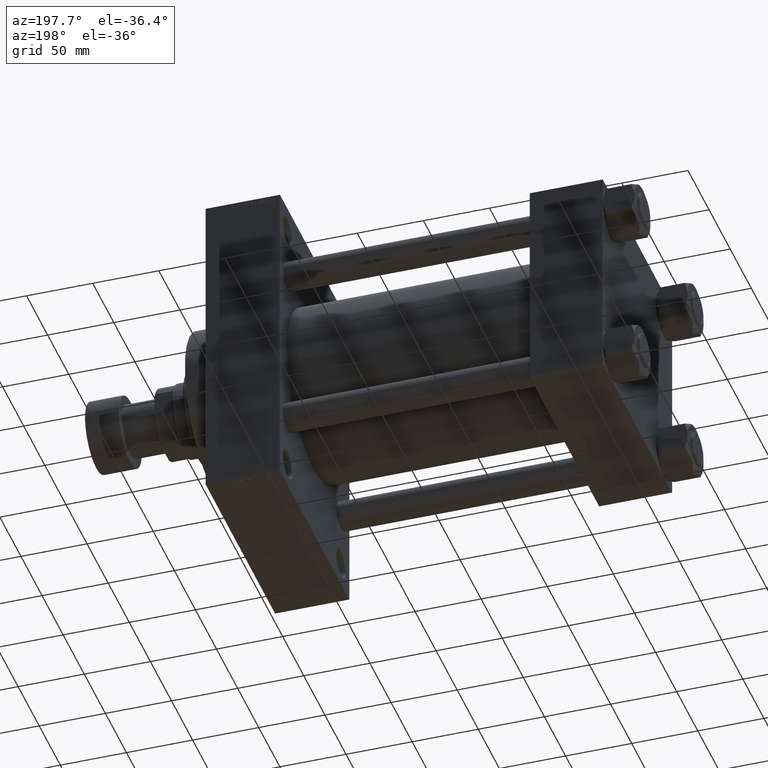
[diagram: clean part render]
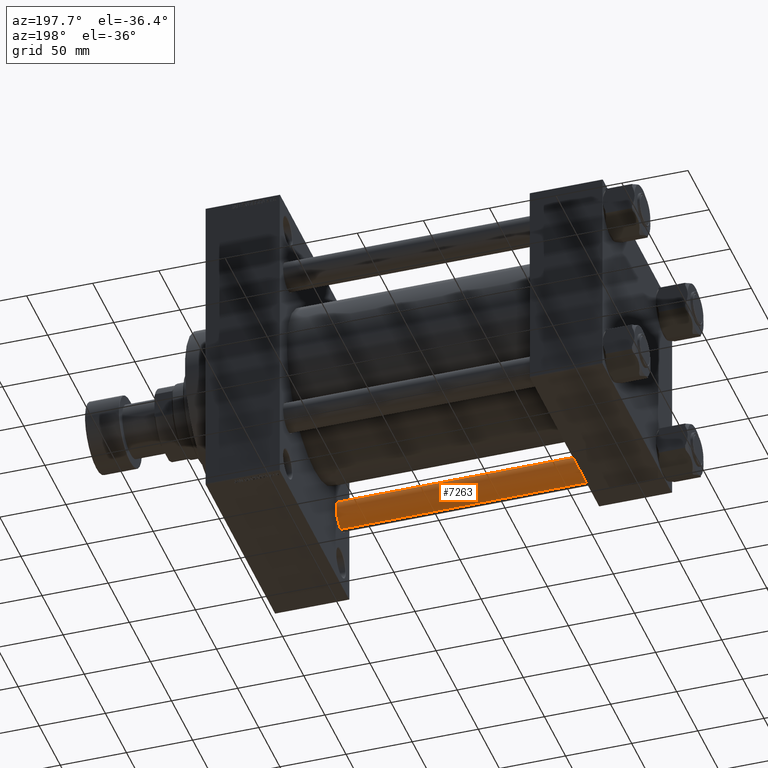
[diagram: same view with one face highlighted and labeled with its STEP entity id]
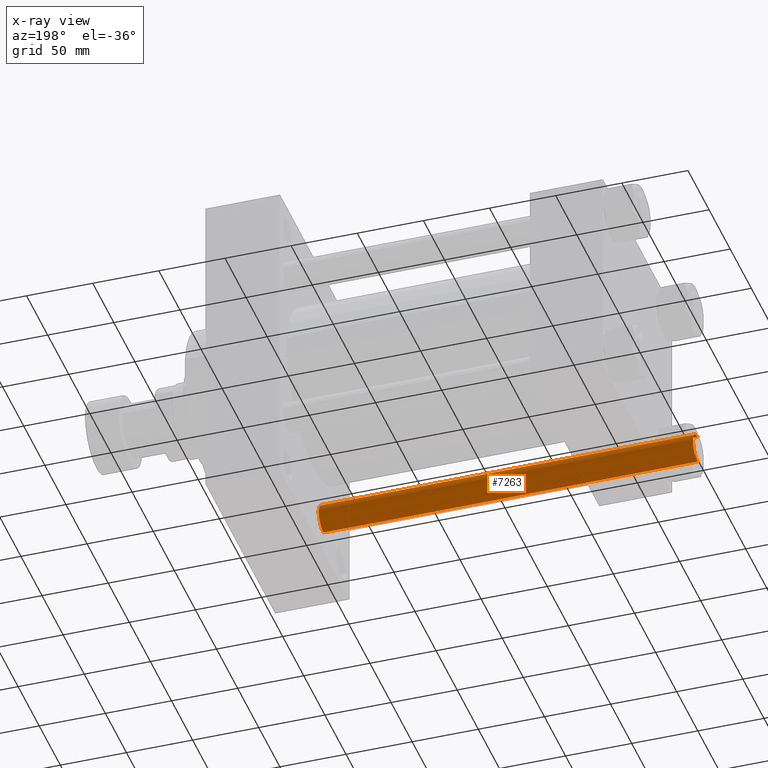
[diagram: x-ray of the same camera — body ghosted, the highlighted face saturated]
A machine part, auxiliary view. The second image highlights one B-rep face of the part: STEP entity #7263.
The next image is the same camera in x-ray: the body ghosted, the highlighted face saturated — about 0% of this face is hidden behind the body in this view.
In plain terms, the highlighted cylindrical surface (edge-blend (fillet) strip) has radius 11 mm, axis along (1, 0, 0).
Its self-contained STEP definition (entity closure, byte-faithful):
#1631 = ORIENTED_EDGE ( 'NONE', *, *, #29356, .T. ) ;
#2133 = AXIS2_PLACEMENT_3D ( 'NONE', #9176, #24020, #46909 ) ;
#3345 = DIRECTION ( 'NONE',  ( 1.000000000000000000, 0.000000000000000000, 0.000000000000000000 ) ) ;
#4545 = VERTEX_POINT ( 'NONE', #5299 ) ;
#5299 = CARTESIAN_POINT ( 'NONE',  ( -11.00000000000000000, 0.000000000000000000, 283.5000000000001137 ) ) ;
#7263 = ADVANCED_FACE ( 'NONE', ( #32030 ), #9887, .T. ) ;
#7474 = DIRECTION ( 'NONE',  ( -0.000000000000000000, -0.000000000000000000, 1.000000000000000000 ) ) ;
#8455 = VECTOR ( 'NONE', #22610, 1000.000000000000000 ) ;
#8836 = AXIS2_PLACEMENT_3D ( 'NONE', #18875, #7474, #33744 ) ;
#9176 = CARTESIAN_POINT ( 'NONE',  ( 0.000000000000000000, 0.000000000000000000, 284.0000000000000000 ) ) ;
#9887 = CYLINDRICAL_SURFACE ( 'NONE', #2133, 11.00000000000000000 ) ;
#10512 = VERTEX_POINT ( 'NONE', #24304 ) ;
#11657 = ORIENTED_EDGE ( 'NONE', *, *, #43858, .T. ) ;
#15003 = CARTESIAN_POINT ( 'NONE',  ( 11.00000000000000000, 1.347111479062088405E-15, 283.5000000000001137 ) ) ;
#16787 = CARTESIAN_POINT ( 'NONE',  ( -11.00000000000000000, 0.000000000000000000, 284.0000000000000000 ) ) ;
#18688 = EDGE_CURVE ( 'NONE', #23224, #10512, #45273, .T. ) ;
#18875 = CARTESIAN_POINT ( 'NONE',  ( 0.000000000000000000, 0.000000000000000000, 0.5000000000000559552 ) ) ;
#22610 = DIRECTION ( 'NONE',  ( -0.000000000000000000, -0.000000000000000000, -1.000000000000000000 ) ) ;
#23207 = EDGE_CURVE ( 'NONE', #26106, #10512, #26721, .T. ) ;
#23224 = VERTEX_POINT ( 'NONE', #15003 ) ;
#24020 = DIRECTION ( 'NONE',  ( -0.000000000000000000, -0.000000000000000000, -1.000000000000000000 ) ) ;
#24304 = CARTESIAN_POINT ( 'NONE',  ( 11.00000000000000000, 1.347111479062088405E-15, 0.5000000000000559552 ) ) ;
#26106 = VERTEX_POINT ( 'NONE', #29625 ) ;
#26721 = CIRCLE ( 'NONE', #8836, 11.00000000000000000 ) ;
#29356 = EDGE_CURVE ( 'NONE', #4545, #26106, #35288, .T. ) ;
#29433 = ORIENTED_EDGE ( 'NONE', *, *, #23207, .T. ) ;
#29625 = CARTESIAN_POINT ( 'NONE',  ( -11.00000000000000000, 0.000000000000000000, 0.5000000000000559552 ) ) ;
#32030 = FACE_OUTER_BOUND ( 'NONE', #40290, .T. ) ;
#33744 = DIRECTION ( 'NONE',  ( 1.000000000000000000, 0.000000000000000000, 0.000000000000000000 ) ) ;
#33848 = VECTOR ( 'NONE', #43568, 1000.000000000000000 ) ;
#35288 = LINE ( 'NONE', #16787, #33848 ) ;
#37234 = CARTESIAN_POINT ( 'NONE',  ( 11.00000000000000000, 1.347111479062088405E-15, 284.0000000000000000 ) ) ;
#37593 = CIRCLE ( 'NONE', #43824, 11.00000000000000000 ) ;
#38812 = ORIENTED_EDGE ( 'NONE', *, *, #18688, .F. ) ;
#40290 = EDGE_LOOP ( 'NONE', ( #38812, #11657, #1631, #29433 ) ) ;
#40851 = DIRECTION ( 'NONE',  ( 0.000000000000000000, 0.000000000000000000, -1.000000000000000000 ) ) ;
#43568 = DIRECTION ( 'NONE',  ( -0.000000000000000000, -0.000000000000000000, -1.000000000000000000 ) ) ;
#43824 = AXIS2_PLACEMENT_3D ( 'NONE', #44023, #40851, #3345 ) ;
#43858 = EDGE_CURVE ( 'NONE', #23224, #4545, #37593, .T. ) ;
#44023 = CARTESIAN_POINT ( 'NONE',  ( 0.000000000000000000, 0.000000000000000000, 283.5000000000001137 ) ) ;
#45273 = LINE ( 'NONE', #37234, #8455 ) ;
#46909 = DIRECTION ( 'NONE',  ( -1.000000000000000000, 0.000000000000000000, 0.000000000000000000 ) ) ;